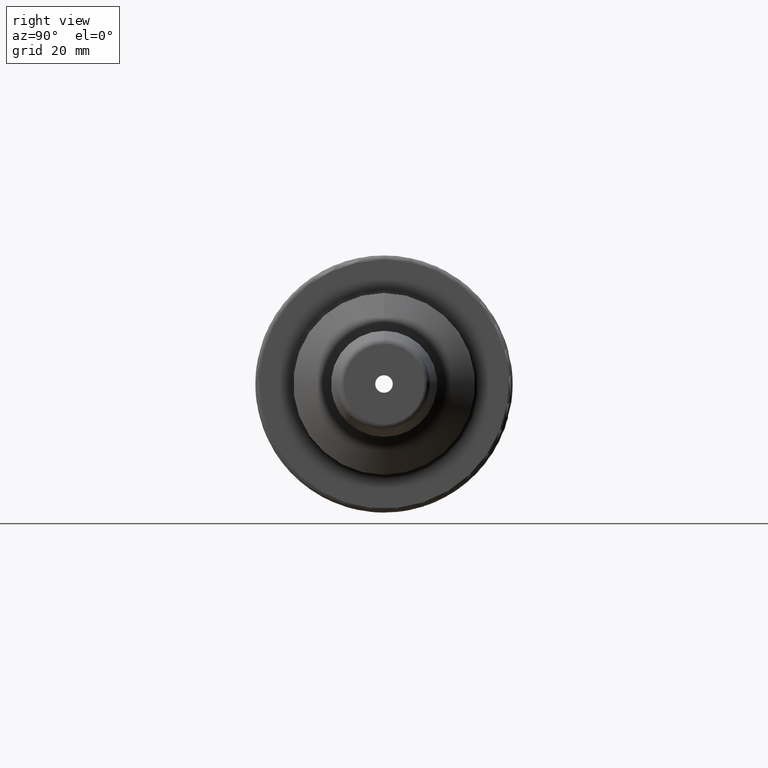
[diagram: clean part render]
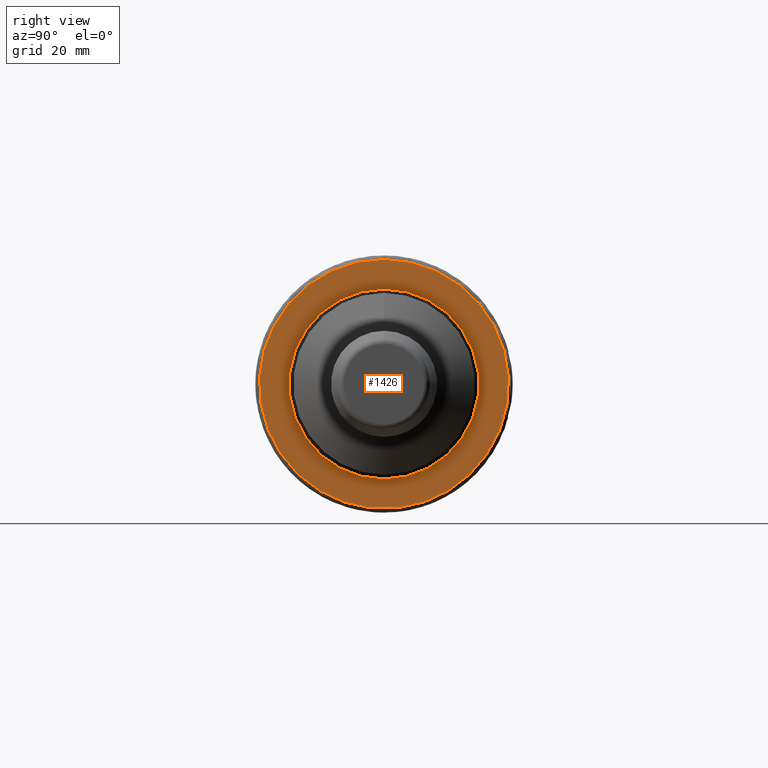
[diagram: same view with one face highlighted and labeled with its STEP entity id]
A machine part, right view. The second image highlights one B-rep face of the part: STEP entity #1426.
In plain terms, the highlighted planar face has unit normal (1, 0, 0).
Its self-contained STEP definition (entity closure, byte-faithful):
#38=PLANE('',#1583);
#77=FACE_BOUND('',#271,.T.);
#178=FACE_OUTER_BOUND('',#270,.T.);
#270=EDGE_LOOP('',(#1066));
#271=EDGE_LOOP('',(#1067));
#534=CIRCLE('',#1580,23.25);
#536=CIRCLE('',#1584,30.5);
#627=VERTEX_POINT('',#2406);
#629=VERTEX_POINT('',#2414);
#790=EDGE_CURVE('',#627,#627,#534,.T.);
#793=EDGE_CURVE('',#629,#629,#536,.T.);
#1066=ORIENTED_EDGE('',*,*,#793,.T.);
#1067=ORIENTED_EDGE('',*,*,#790,.F.);
#1426=ADVANCED_FACE('',(#178,#77),#38,.T.);
#1580=AXIS2_PLACEMENT_3D('',#2408,#1873,#1874);
#1583=AXIS2_PLACEMENT_3D('',#2413,#1880,#1881);
#1584=AXIS2_PLACEMENT_3D('',#2415,#1882,#1883);
#1873=DIRECTION('center_axis',(1.,0.,0.));
#1874=DIRECTION('ref_axis',(0.,-1.22464679914735E-16,1.));
#1880=DIRECTION('center_axis',(1.,0.,0.));
#1881=DIRECTION('ref_axis',(0.,0.,-1.));
#1882=DIRECTION('center_axis',(1.,0.,0.));
#1883=DIRECTION('ref_axis',(0.,0.,-1.));
#2406=CARTESIAN_POINT('',(27.,5.69460761603519E-15,-23.25));
#2408=CARTESIAN_POINT('Origin',(27.,0.,0.));
#2413=CARTESIAN_POINT('Origin',(27.,0.,0.));
#2414=CARTESIAN_POINT('',(27.,-3.73517273739943E-15,30.5));
#2415=CARTESIAN_POINT('Origin',(27.,0.,0.));